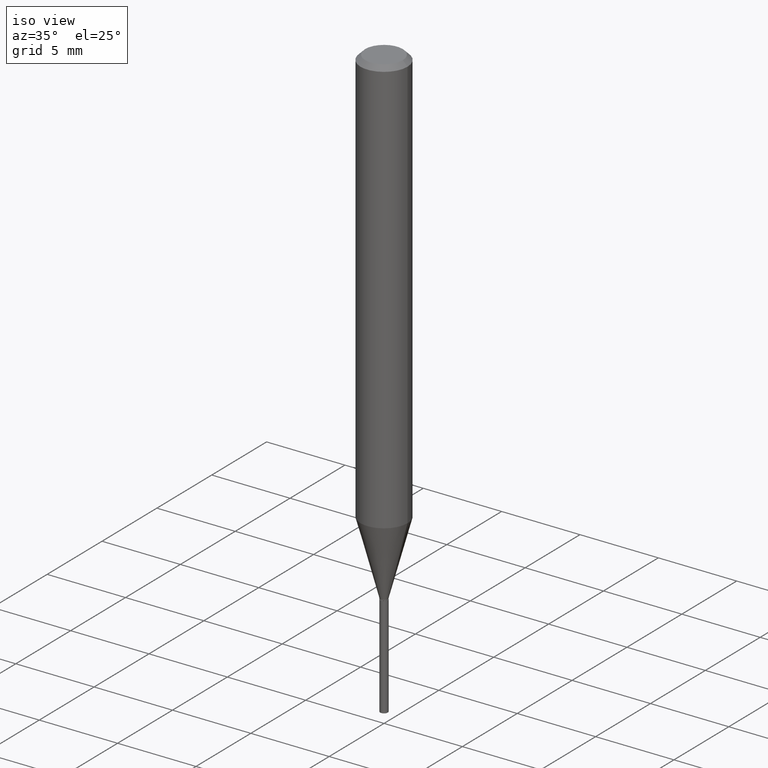
[diagram: clean part render]
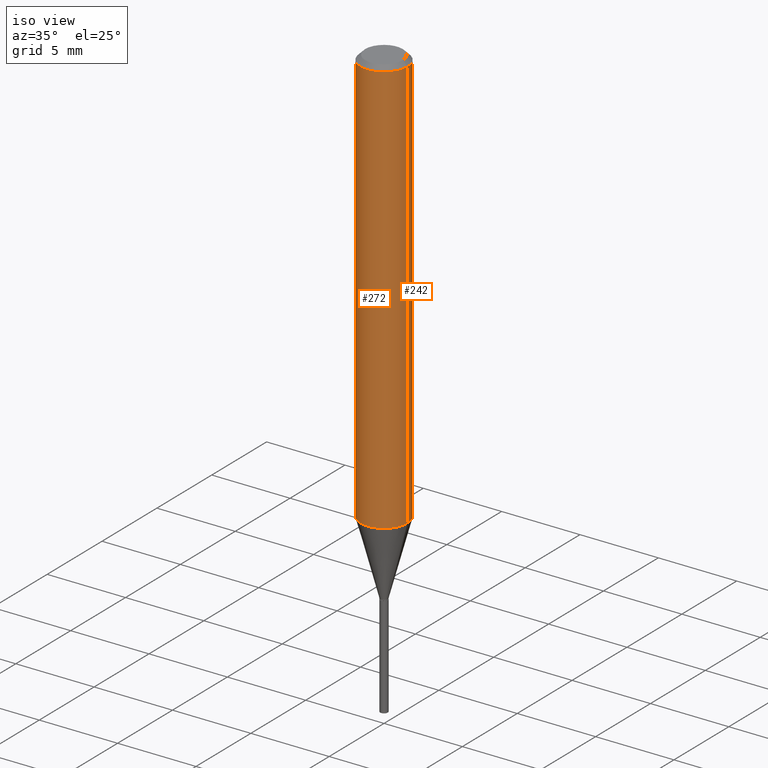
[diagram: same view with one multi-face feature highlighted, each face labeled with its STEP entity id]
A machine part, iso view. The highlighted faces form ONE feature: a constant-radius fillet chain: 2 tangent blend faces with common blend radius 1.4999 mm. The faces share edges in the B-rep.
Their STEP definitions:
[1] entity #272 (Cylinder):
#6 = AXIS2_PLACEMENT_3D ( 'NONE', #215, #261, #356 ) ;
#19 = VERTEX_POINT ( 'NONE', #214 ) ;
#25 = VECTOR ( 'NONE', #141, 39.37007874015748143 ) ;
#33 = VERTEX_POINT ( 'NONE', #75 ) ;
#53 = CARTESIAN_POINT ( 'NONE',  ( 0.000000000000000000, 0.000000000000000000, 0.000000000000000000 ) ) ;
#58 = DIRECTION ( 'NONE',  ( 1.000000000000000000, -6.982962677686266711E-15, 4.876176775795936353E-29 ) ) ;
#70 = ORIENTED_EDGE ( 'NONE', *, *, #113, .T. ) ;
#75 = CARTESIAN_POINT ( 'NONE',  ( 0.05904999999999999832, -4.535783407291118600E-16, -0.01181000000000007565 ) ) ;
#84 = DIRECTION ( 'NONE',  ( -2.445468806185136877E-29, 3.491481338843145188E-15, 1.000000000000000000 ) ) ;
#89 = DIRECTION ( 'NONE',  ( 1.000000000000000000, -6.982962677686265133E-15, 0.000000000000000000 ) ) ;
#100 = ORIENTED_EDGE ( 'NONE', *, *, #249, .T. ) ;
#113 = EDGE_CURVE ( 'NONE', #19, #33, #354, .T. ) ;
#114 = CARTESIAN_POINT ( 'NONE',  ( -0.05905000000000013016, -3.240859612784714140E-15, -1.048390279944583448 ) ) ;
#128 = ORIENTED_EDGE ( 'NONE', *, *, #172, .F. ) ;
#140 = CIRCLE ( 'NONE', #237, 0.05905000000000013016 ) ;
#141 = DIRECTION ( 'NONE',  ( -2.445468806185136877E-29, 3.491481338843145188E-15, 1.000000000000000000 ) ) ;
#172 = EDGE_CURVE ( 'NONE', #319, #373, #332, .T. ) ;
#213 = CARTESIAN_POINT ( 'NONE',  ( -0.05904999999999999832, -1.431259260965055596E-15, -0.01181000000000007565 ) ) ;
#214 = CARTESIAN_POINT ( 'NONE',  ( 0.05905000000000013016, -4.072779044368429342E-15, -1.048390279944583448 ) ) ;
#215 = CARTESIAN_POINT ( 'NONE',  ( 2.888098660104664642E-31, -4.123439461173780879E-17, -0.01181000000000007565 ) ) ;
#223 = CARTESIAN_POINT ( 'NONE',  ( -0.05905000000000006771, 4.195754854663396409E-16, -2.904631170795525045E-30 ) ) ;
#233 = DIRECTION ( 'NONE',  ( -2.445468806185136597E-29, 3.491481338843145583E-15, 1.000000000000000000 ) ) ;
#237 = AXIS2_PLACEMENT_3D ( 'NONE', #357, #233, #89 ) ;
#239 = FACE_OUTER_BOUND ( 'NONE', #367, .T. ) ;
#249 = EDGE_CURVE ( 'NONE', #319, #19, #140, .T. ) ;
#261 = DIRECTION ( 'NONE',  ( -2.445468806185136597E-29, 3.491481338843145583E-15, 1.000000000000000000 ) ) ;
#268 = CARTESIAN_POINT ( 'NONE',  ( 0.05905000000000006771, -4.123439461173745257E-16, 2.879382386107503723E-30 ) ) ;
#272 = ADVANCED_FACE ( 'NONE', ( #239 ), #466, .T. ) ;
#275 = DIRECTION ( 'NONE',  ( -2.445468806185136597E-29, 3.491481338843145583E-15, 1.000000000000000000 ) ) ;
#308 = VECTOR ( 'NONE', #84, 39.37007874015748143 ) ;
#310 = CIRCLE ( 'NONE', #6, 0.05904999999999999832 ) ;
#319 = VERTEX_POINT ( 'NONE', #114 ) ;
#332 = LINE ( 'NONE', #223, #25 ) ;
#334 = AXIS2_PLACEMENT_3D ( 'NONE', #53, #275, #58 ) ;
#354 = LINE ( 'NONE', #268, #308 ) ;
#356 = DIRECTION ( 'NONE',  ( 1.000000000000000000, -6.982962677686266711E-15, 0.000000000000000000 ) ) ;
#357 = CARTESIAN_POINT ( 'NONE',  ( 2.563805726312181007E-29, -3.660435098251054422E-15, -1.048390279944583448 ) ) ;
#367 = EDGE_LOOP ( 'NONE', ( #128, #100, #70, #455 ) ) ;
#373 = VERTEX_POINT ( 'NONE', #213 ) ;
#422 = EDGE_CURVE ( 'NONE', #373, #33, #310, .T. ) ;
#455 = ORIENTED_EDGE ( 'NONE', *, *, #422, .F. ) ;
#466 = CYLINDRICAL_SURFACE ( 'NONE', #334, 0.05905000000000006771 ) ;
[2] entity #242 (Cylinder):
#19 = VERTEX_POINT ( 'NONE', #214 ) ;
#22 = EDGE_CURVE ( 'NONE', #19, #319, #56, .T. ) ;
#25 = VECTOR ( 'NONE', #141, 39.37007874015748143 ) ;
#33 = VERTEX_POINT ( 'NONE', #75 ) ;
#56 = CIRCLE ( 'NONE', #139, 0.05905000000000013016 ) ;
#66 = DIRECTION ( 'NONE',  ( 1.000000000000000000, -6.982962677686266711E-15, 0.000000000000000000 ) ) ;
#75 = CARTESIAN_POINT ( 'NONE',  ( 0.05904999999999999832, -4.535783407291118600E-16, -0.01181000000000007565 ) ) ;
#84 = DIRECTION ( 'NONE',  ( -2.445468806185136877E-29, 3.491481338843145188E-15, 1.000000000000000000 ) ) ;
#86 = FACE_OUTER_BOUND ( 'NONE', #127, .T. ) ;
#113 = EDGE_CURVE ( 'NONE', #19, #33, #354, .T. ) ;
#114 = CARTESIAN_POINT ( 'NONE',  ( -0.05905000000000013016, -3.240859612784714140E-15, -1.048390279944583448 ) ) ;
#118 = DIRECTION ( 'NONE',  ( 1.000000000000000000, -6.982962677686266711E-15, 4.876176775795936353E-29 ) ) ;
#127 = EDGE_LOOP ( 'NONE', ( #471, #297, #474, #479 ) ) ;
#139 = AXIS2_PLACEMENT_3D ( 'NONE', #379, #416, #263 ) ;
#141 = DIRECTION ( 'NONE',  ( -2.445468806185136877E-29, 3.491481338843145188E-15, 1.000000000000000000 ) ) ;
#172 = EDGE_CURVE ( 'NONE', #319, #373, #332, .T. ) ;
#191 = CARTESIAN_POINT ( 'NONE',  ( 0.000000000000000000, 0.000000000000000000, 0.000000000000000000 ) ) ;
#199 = CYLINDRICAL_SURFACE ( 'NONE', #423, 0.05905000000000006771 ) ;
#213 = CARTESIAN_POINT ( 'NONE',  ( -0.05904999999999999832, -1.431259260965055596E-15, -0.01181000000000007565 ) ) ;
#214 = CARTESIAN_POINT ( 'NONE',  ( 0.05905000000000013016, -4.072779044368429342E-15, -1.048390279944583448 ) ) ;
#223 = CARTESIAN_POINT ( 'NONE',  ( -0.05905000000000006771, 4.195754854663396409E-16, -2.904631170795525045E-30 ) ) ;
#242 = ADVANCED_FACE ( 'NONE', ( #86 ), #199, .T. ) ;
#263 = DIRECTION ( 'NONE',  ( 1.000000000000000000, -6.982962677686265133E-15, 0.000000000000000000 ) ) ;
#268 = CARTESIAN_POINT ( 'NONE',  ( 0.05905000000000006771, -4.123439461173745257E-16, 2.879382386107503723E-30 ) ) ;
#277 = CIRCLE ( 'NONE', #407, 0.05904999999999999832 ) ;
#297 = ORIENTED_EDGE ( 'NONE', *, *, #172, .T. ) ;
#308 = VECTOR ( 'NONE', #84, 39.37007874015748143 ) ;
#319 = VERTEX_POINT ( 'NONE', #114 ) ;
#332 = LINE ( 'NONE', #223, #25 ) ;
#354 = LINE ( 'NONE', #268, #308 ) ;
#373 = VERTEX_POINT ( 'NONE', #213 ) ;
#379 = CARTESIAN_POINT ( 'NONE',  ( 2.563805726312181007E-29, -3.660435098251054422E-15, -1.048390279944583448 ) ) ;
#403 = DIRECTION ( 'NONE',  ( -2.445468806185136597E-29, 3.491481338843145583E-15, 1.000000000000000000 ) ) ;
#407 = AXIS2_PLACEMENT_3D ( 'NONE', #481, #403, #66 ) ;
#416 = DIRECTION ( 'NONE',  ( -2.445468806185136597E-29, 3.491481338843145583E-15, 1.000000000000000000 ) ) ;
#423 = AXIS2_PLACEMENT_3D ( 'NONE', #191, #425, #118 ) ;
#425 = DIRECTION ( 'NONE',  ( -2.445468806185136597E-29, 3.491481338843145583E-15, 1.000000000000000000 ) ) ;
#467 = EDGE_CURVE ( 'NONE', #33, #373, #277, .T. ) ;
#471 = ORIENTED_EDGE ( 'NONE', *, *, #22, .T. ) ;
#474 = ORIENTED_EDGE ( 'NONE', *, *, #467, .F. ) ;
#479 = ORIENTED_EDGE ( 'NONE', *, *, #113, .F. ) ;
#481 = CARTESIAN_POINT ( 'NONE',  ( 2.888098660104664642E-31, -4.123439461173780879E-17, -0.01181000000000007565 ) ) ;